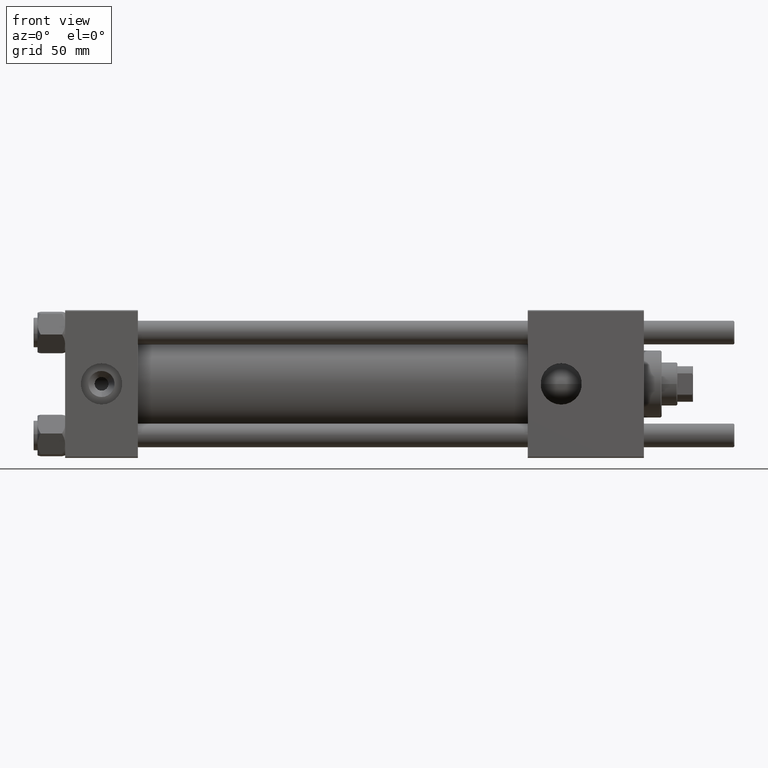
[diagram: clean part render]
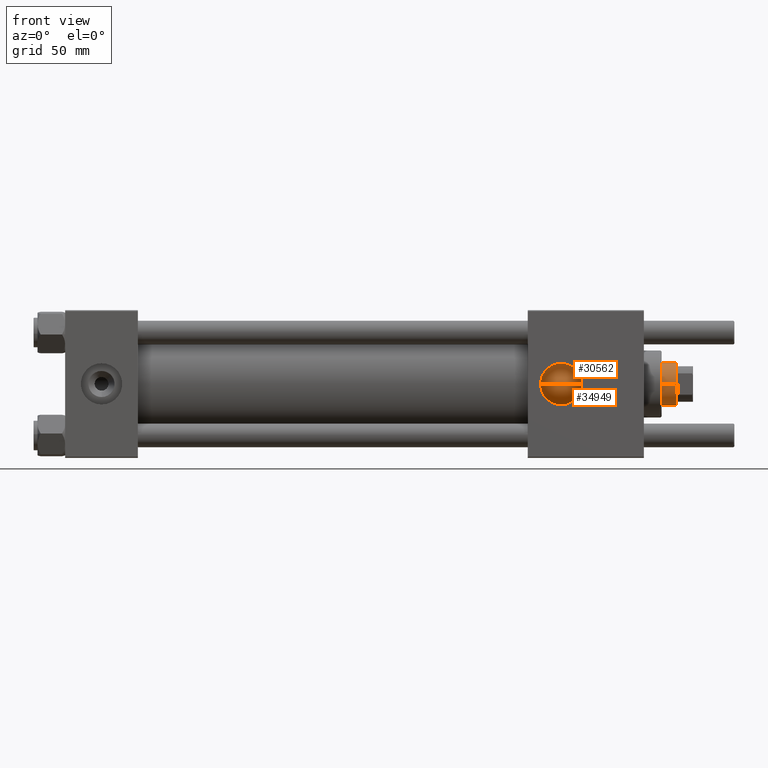
[diagram: same view with one multi-face feature highlighted, each face labeled with its STEP entity id]
A machine part, front view. The highlighted faces form ONE feature: a constant-radius fillet chain: 2 tangent blend faces with common blend radius 11 mm. The faces share edges in the B-rep.
Their STEP definitions:
[1] entity #34949 (Cylinder):
#1095 = LINE ( 'NONE', #44724, #13858 ) ;
#2591 = AXIS2_PLACEMENT_3D ( 'NONE', #42469, #50812, #29518 ) ;
#4558 = VERTEX_POINT ( 'NONE', #33188 ) ;
#4762 = EDGE_CURVE ( 'NONE', #9448, #43521, #41680, .T. ) ;
#5390 = DIRECTION ( 'NONE',  ( -0.000000000000000000, -0.000000000000000000, -1.000000000000000000 ) ) ;
#5544 = CIRCLE ( 'NONE', #28433, 11.00000000000000000 ) ;
#5900 = EDGE_LOOP ( 'NONE', ( #41341, #50773, #13445, #37903 ) ) ;
#6963 = CARTESIAN_POINT ( 'NONE',  ( 11.00000000000000000, 1.347111479062088405E-15, 273.4999999999999432 ) ) ;
#6983 = AXIS2_PLACEMENT_3D ( 'NONE', #14754, #10461, #19057 ) ;
#8985 = CARTESIAN_POINT ( 'NONE',  ( -11.00000000000000000, 0.000000000000000000, 273.4999999999999432 ) ) ;
#9448 = VERTEX_POINT ( 'NONE', #6963 ) ;
#10461 = DIRECTION ( 'NONE',  ( -0.000000000000000000, -0.000000000000000000, -1.000000000000000000 ) ) ;
#12431 = CARTESIAN_POINT ( 'NONE',  ( 11.00000000000000000, 1.347111479062088405E-15, 38.00000000000000000 ) ) ;
#13445 = ORIENTED_EDGE ( 'NONE', *, *, #26006, .T. ) ;
#13858 = VECTOR ( 'NONE', #5390, 1000.000000000000000 ) ;
#14754 = CARTESIAN_POINT ( 'NONE',  ( 0.000000000000000000, 0.000000000000000000, 273.9999999999999432 ) ) ;
#15250 = DIRECTION ( 'NONE',  ( -0.000000000000000000, -0.000000000000000000, -1.000000000000000000 ) ) ;
#19057 = DIRECTION ( 'NONE',  ( -1.000000000000000000, 0.000000000000000000, 0.000000000000000000 ) ) ;
#26006 = EDGE_CURVE ( 'NONE', #43521, #4558, #28277, .T. ) ;
#28277 = CIRCLE ( 'NONE', #2591, 11.00000000000000000 ) ;
#28433 = AXIS2_PLACEMENT_3D ( 'NONE', #48298, #39970, #43706 ) ;
#29496 = VECTOR ( 'NONE', #15250, 1000.000000000000000 ) ;
#29518 = DIRECTION ( 'NONE',  ( 1.000000000000000000, 0.000000000000000000, 0.000000000000000000 ) ) ;
#33188 = CARTESIAN_POINT ( 'NONE',  ( -11.00000000000000000, 0.000000000000000000, 38.00000000000000000 ) ) ;
#34949 = ADVANCED_FACE ( 'NONE', ( #45476 ), #53269, .T. ) ;
#37903 = ORIENTED_EDGE ( 'NONE', *, *, #50668, .F. ) ;
#39970 = DIRECTION ( 'NONE',  ( 0.000000000000000000, 0.000000000000000000, -1.000000000000000000 ) ) ;
#41341 = ORIENTED_EDGE ( 'NONE', *, *, #48135, .T. ) ;
#41680 = LINE ( 'NONE', #54613, #29496 ) ;
#42469 = CARTESIAN_POINT ( 'NONE',  ( 0.000000000000000000, 0.000000000000000000, 38.00000000000000000 ) ) ;
#42792 = VERTEX_POINT ( 'NONE', #8985 ) ;
#43521 = VERTEX_POINT ( 'NONE', #12431 ) ;
#43706 = DIRECTION ( 'NONE',  ( 1.000000000000000000, 0.000000000000000000, 0.000000000000000000 ) ) ;
#44724 = CARTESIAN_POINT ( 'NONE',  ( -11.00000000000000000, 0.000000000000000000, 273.9999999999999432 ) ) ;
#45476 = FACE_OUTER_BOUND ( 'NONE', #5900, .T. ) ;
#48135 = EDGE_CURVE ( 'NONE', #42792, #9448, #5544, .T. ) ;
#48298 = CARTESIAN_POINT ( 'NONE',  ( 0.000000000000000000, 0.000000000000000000, 273.4999999999999432 ) ) ;
#50668 = EDGE_CURVE ( 'NONE', #42792, #4558, #1095, .T. ) ;
#50773 = ORIENTED_EDGE ( 'NONE', *, *, #4762, .T. ) ;
#50812 = DIRECTION ( 'NONE',  ( 0.000000000000000000, 0.000000000000000000, 1.000000000000000000 ) ) ;
#53269 = CYLINDRICAL_SURFACE ( 'NONE', #6983, 11.00000000000000000 ) ;
#54613 = CARTESIAN_POINT ( 'NONE',  ( 11.00000000000000000, 1.347111479062088405E-15, 273.9999999999999432 ) ) ;
[2] entity #30562 (Cylinder):
#1095 = LINE ( 'NONE', #44724, #13858 ) ;
#1384 = CARTESIAN_POINT ( 'NONE',  ( 0.000000000000000000, 0.000000000000000000, 273.9999999999999432 ) ) ;
#1884 = ORIENTED_EDGE ( 'NONE', *, *, #50668, .T. ) ;
#1945 = DIRECTION ( 'NONE',  ( -1.000000000000000000, 0.000000000000000000, 0.000000000000000000 ) ) ;
#4103 = AXIS2_PLACEMENT_3D ( 'NONE', #37997, #29059, #33105 ) ;
#4558 = VERTEX_POINT ( 'NONE', #33188 ) ;
#4762 = EDGE_CURVE ( 'NONE', #9448, #43521, #41680, .T. ) ;
#5390 = DIRECTION ( 'NONE',  ( -0.000000000000000000, -0.000000000000000000, -1.000000000000000000 ) ) ;
#6963 = CARTESIAN_POINT ( 'NONE',  ( 11.00000000000000000, 1.347111479062088405E-15, 273.4999999999999432 ) ) ;
#7943 = AXIS2_PLACEMENT_3D ( 'NONE', #1384, #35837, #1945 ) ;
#8653 = CIRCLE ( 'NONE', #4103, 11.00000000000000000 ) ;
#8985 = CARTESIAN_POINT ( 'NONE',  ( -11.00000000000000000, 0.000000000000000000, 273.4999999999999432 ) ) ;
#9448 = VERTEX_POINT ( 'NONE', #6963 ) ;
#12431 = CARTESIAN_POINT ( 'NONE',  ( 11.00000000000000000, 1.347111479062088405E-15, 38.00000000000000000 ) ) ;
#13626 = CIRCLE ( 'NONE', #45712, 11.00000000000000000 ) ;
#13858 = VECTOR ( 'NONE', #5390, 1000.000000000000000 ) ;
#14576 = FACE_OUTER_BOUND ( 'NONE', #49587, .T. ) ;
#15250 = DIRECTION ( 'NONE',  ( -0.000000000000000000, -0.000000000000000000, -1.000000000000000000 ) ) ;
#18037 = EDGE_CURVE ( 'NONE', #9448, #42792, #8653, .T. ) ;
#18311 = CYLINDRICAL_SURFACE ( 'NONE', #7943, 11.00000000000000000 ) ;
#19702 = ORIENTED_EDGE ( 'NONE', *, *, #41532, .T. ) ;
#25027 = DIRECTION ( 'NONE',  ( 0.000000000000000000, 0.000000000000000000, 1.000000000000000000 ) ) ;
#29059 = DIRECTION ( 'NONE',  ( 0.000000000000000000, 0.000000000000000000, -1.000000000000000000 ) ) ;
#29496 = VECTOR ( 'NONE', #15250, 1000.000000000000000 ) ;
#30562 = ADVANCED_FACE ( 'NONE', ( #14576 ), #18311, .T. ) ;
#30752 = DIRECTION ( 'NONE',  ( 1.000000000000000000, 0.000000000000000000, 0.000000000000000000 ) ) ;
#33105 = DIRECTION ( 'NONE',  ( 1.000000000000000000, 0.000000000000000000, 0.000000000000000000 ) ) ;
#33188 = CARTESIAN_POINT ( 'NONE',  ( -11.00000000000000000, 0.000000000000000000, 38.00000000000000000 ) ) ;
#33929 = ORIENTED_EDGE ( 'NONE', *, *, #4762, .F. ) ;
#35837 = DIRECTION ( 'NONE',  ( -0.000000000000000000, -0.000000000000000000, -1.000000000000000000 ) ) ;
#37997 = CARTESIAN_POINT ( 'NONE',  ( 0.000000000000000000, 0.000000000000000000, 273.4999999999999432 ) ) ;
#41532 = EDGE_CURVE ( 'NONE', #4558, #43521, #13626, .T. ) ;
#41680 = LINE ( 'NONE', #54613, #29496 ) ;
#42792 = VERTEX_POINT ( 'NONE', #8985 ) ;
#42858 = CARTESIAN_POINT ( 'NONE',  ( 0.000000000000000000, 0.000000000000000000, 38.00000000000000000 ) ) ;
#43521 = VERTEX_POINT ( 'NONE', #12431 ) ;
#44724 = CARTESIAN_POINT ( 'NONE',  ( -11.00000000000000000, 0.000000000000000000, 273.9999999999999432 ) ) ;
#45712 = AXIS2_PLACEMENT_3D ( 'NONE', #42858, #25027, #30752 ) ;
#49587 = EDGE_LOOP ( 'NONE', ( #33929, #51238, #1884, #19702 ) ) ;
#50668 = EDGE_CURVE ( 'NONE', #42792, #4558, #1095, .T. ) ;
#51238 = ORIENTED_EDGE ( 'NONE', *, *, #18037, .T. ) ;
#54613 = CARTESIAN_POINT ( 'NONE',  ( 11.00000000000000000, 1.347111479062088405E-15, 273.9999999999999432 ) ) ;